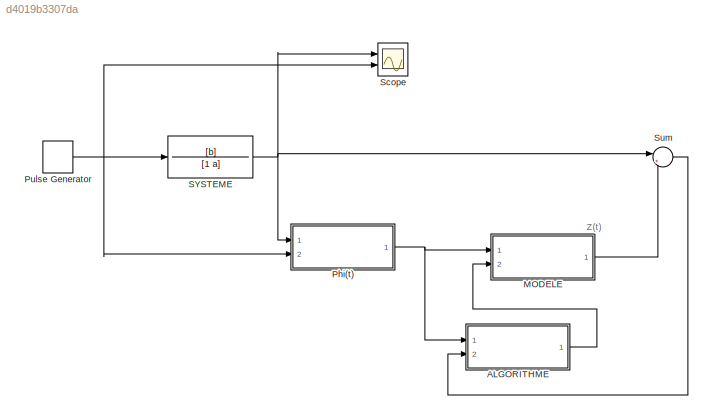
MODEL slx_d4019b3307da
KIND model
CONFIG AbsTol = auto
CONFIG FixedStep = auto
CONFIG MaxStep = auto
CONFIG MinStep = auto
CONFIG RelTol = 1e-3
CONFIG SampleTimeConstraint = Unconstrained
CONFIG Solver = VariableStepAuto
CONFIG SolverMode = Auto
CONFIG SolverName = VariableStepAuto
CONFIG StartTime = 0.0
CONFIG StopTime = 10
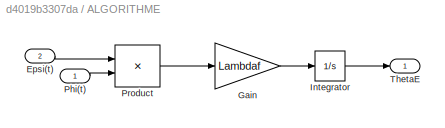
BLOCK [SubSystem] ALGORITHME 
  Ports = [2, 1]
  RequestExecContextInheritance = off
  Variant = off
BLOCK [Inport] ALGORITHME /Epsi(t) 
  IconDisplay = Port number
  Port = 2
BLOCK [Gain] ALGORITHME /Gain
  Gain = Lambdaf
  OutDataTypeStr = Inherit: Inherit via internal rule
  ParamDataTypeStr = Inherit: Inherit via internal rule
  SaturateOnIntegerOverflow = off
BLOCK [Integrator] ALGORITHME /Integrator
  Ports = [1, 1]
BLOCK [Inport] ALGORITHME /Phi(t)
  IconDisplay = Port number
BLOCK [Product] ALGORITHME /Product
  InputSameDT = off
  Multiplication = Matrix(*)
  OutDataTypeStr = Inherit: Inherit via internal rule
  Ports = [2, 1]
  RndMeth = Floor
  SaturateOnIntegerOverflow = off
BLOCK [Outport] ALGORITHME /ThetaE
  IconDisplay = Port number
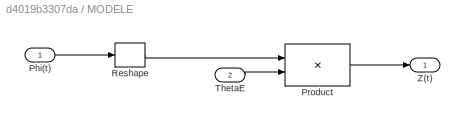
BLOCK [SubSystem] MODELE
  Ports = [2, 1]
  RequestExecContextInheritance = off
  Variant = off
BLOCK [Inport] MODELE/Phi(t)
  IconDisplay = Port number
BLOCK [Product] MODELE/Product
  InputSameDT = off
  Multiplication = Matrix(*)
  OutDataTypeStr = Inherit: Inherit via internal rule
  Ports = [2, 1]
  RndMeth = Floor
  SaturateOnIntegerOverflow = off
BLOCK [Reshape] MODELE/Reshape
  OutputDimensionality = Customize
  OutputDimensions = [2,1]
  Ports = [1, 1]
BLOCK [Inport] MODELE/ThetaE
  IconDisplay = Port number
  Port = 2
BLOCK [Outport] MODELE/Z(t)
  IconDisplay = Port number
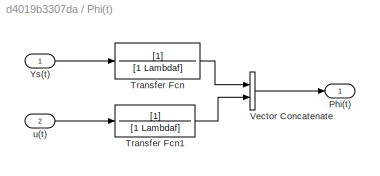
BLOCK [SubSystem] Phi(t)
  Ports = [2, 1]
  RequestExecContextInheritance = off
  Variant = off
BLOCK [Outport] Phi(t)/Phi(t) 
  IconDisplay = Port number
BLOCK [TransferFcn] Phi(t)/Transfer Fcn
  Denominator = [1 Lambdaf]
BLOCK [TransferFcn] Phi(t)/Transfer Fcn1
  Denominator = [1 Lambdaf]
BLOCK [Concatenate] Phi(t)/Vector Concatenate
  Ports = [2, 1]
BLOCK [Inport] Phi(t)/Ys(t)
  IconDisplay = Port number
BLOCK [Inport] Phi(t)/u(t)
  IconDisplay = Port number
  Port = 2
BLOCK [DiscretePulseGenerator] Pulse Generator
  Period = 1
  Ports = [0, 1]
  PulseType = Time based
  PulseWidth = 50
BLOCK [TransferFcn] SYSTEME
  Denominator = [1 a]
  Numerator = [b]
BLOCK [Scope] Scope
  NumInputPorts = 2
  Ports = [2]
  ScopeSpecificationString = Simulink.scopes.TimeScopeBlockCfg('CurrentConfiguration', extmgr.ConfigurationSet(extmgr.Configuration('Core','General UI',true,'FigureColor',[1 1 1]),extmgr.Configuration('Core','Source UI',true),extmgr.Configuration('Sources','WiredSimulink',true),extmgr.Configuration('Visuals','Time Domain',true,'SerializedDisplays',{struct('MinYLimReal','-0.125','MaxYLimReal','1.125','YLabelReal','','MinYLimMa...<+1581ch>
BLOCK [Sum] Sum
  IconShape = round
  InputSameDT = off
  Inputs = |+-
  OutDataTypeStr = Inherit: Inherit via internal rule
  Ports = [2, 1]
  SaturateOnIntegerOverflow = off
ANNOTATION (root): Z(t)
LINE ALGORITHME /Epsi(t) :1 -> ALGORITHME /Product:1
LINE ALGORITHME /Gain:1 -> ALGORITHME /Integrator:1
LINE ALGORITHME /Integrator:1 -> ALGORITHME /ThetaE:1
LINE ALGORITHME /Phi(t):1 -> ALGORITHME /Product:2
LINE ALGORITHME /Product:1 -> ALGORITHME /Gain:1
LINE ALGORITHME :1 -> MODELE:2
LINE MODELE/Phi(t):1 -> MODELE/Reshape:1
LINE MODELE/Product:1 -> MODELE/Z(t):1
LINE MODELE/Reshape:1 -> MODELE/Product:1
LINE MODELE/ThetaE:1 -> MODELE/Product:2
LINE MODELE:1 -> Sum:2
LINE Phi(t)/Transfer Fcn1:1 -> Phi(t)/Vector Concatenate:2
LINE Phi(t)/Transfer Fcn:1 -> Phi(t)/Vector Concatenate:1
LINE Phi(t)/Vector Concatenate:1 -> Phi(t)/Phi(t) :1
LINE Phi(t)/Ys(t):1 -> Phi(t)/Transfer Fcn:1
LINE Phi(t)/u(t):1 -> Phi(t)/Transfer Fcn1:1
NET Phi(t):1 -> ALGORITHME :1, MODELE:1
NET Pulse Generator:1 -> Phi(t):2, SYSTEME:1, Scope:2
NET SYSTEME:1 -> Phi(t):1, Scope:1, Sum:1
LINE Sum:1 -> ALGORITHME :2
note: NET lines group one-source signal fan-out (src -> all destinations, sorted); 1:1 wires keep LINE
